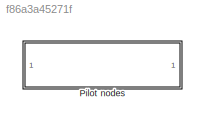
MODEL slx_f86a3a45271f
KIND model
CONFIG AbsTol = auto
CONFIG EnableMultiTasking = off
CONFIG FixedStep = auto
CONFIG MaxStep = auto
CONFIG MinStep = auto
CONFIG RelTol = 1e-3
CONFIG SampleTimeConstraint = Unconstrained
CONFIG SolverName = VariableStepAuto
CONFIG StartTime = 0.0
CONFIG StopTime = 10.0
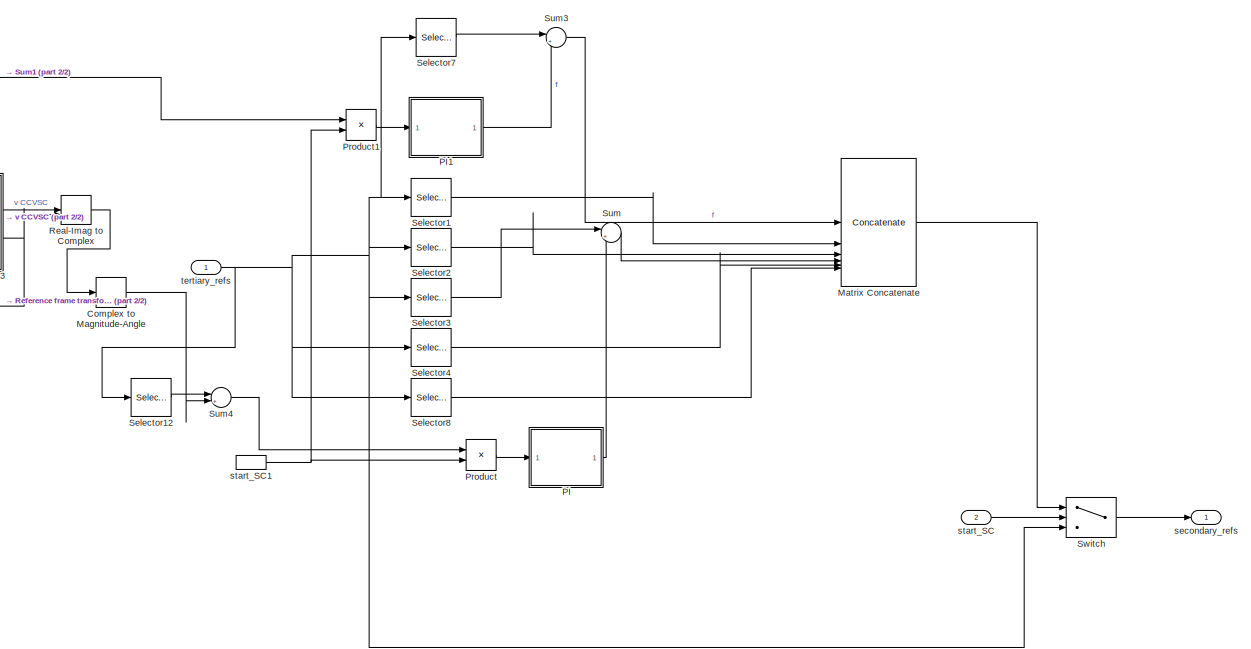
[diagram: Pilot nodes - part 1/2, right side, full height]
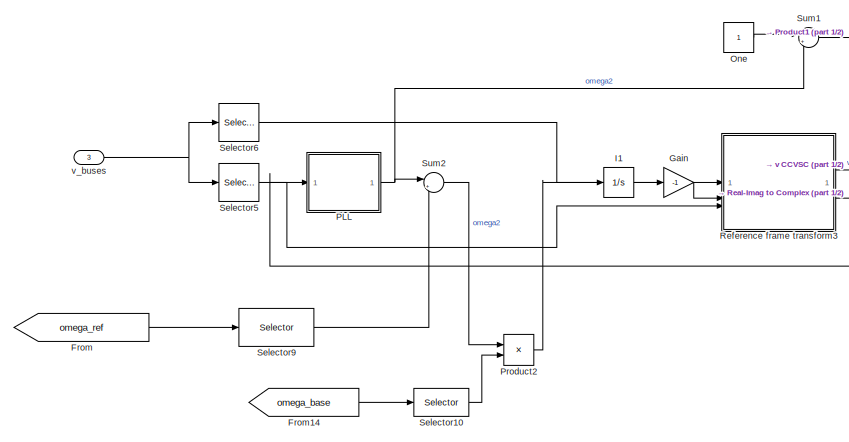
[diagram: Pilot nodes - part 2/2, middle left region]
BLOCK [SubSystem] Pilot nodes
  NameLocation = top
  VariantControl = Pilot nodes
BLOCK [ComplexToMagnitudeAngle] Pilot nodes/Complex to Magnitude-Angle
  Output = Magnitude
BLOCK [From] Pilot nodes/From
  GotoTag = omega_ref
  TagVisibility = scoped
BLOCK [From] Pilot nodes/From14
  GotoTag = omega_base
  TagVisibility = scoped
BLOCK [Gain] Pilot nodes/Gain
  Gain = -1
BLOCK [Integrator] Pilot nodes/I1
BLOCK [Concatenate] Pilot nodes/Matrix Concatenate
  Mode = Multidimensional array
  NumInputs = 6
BLOCK [Constant] Pilot nodes/One
  OutDataTypeStr = Inherit: Inherit via back propagation
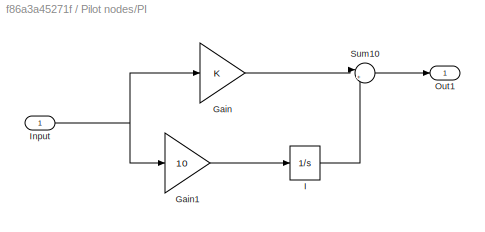
BLOCK [SubSystem] Pilot nodes/PI
BLOCK [Gain] Pilot nodes/PI/Gain
BLOCK [Gain] Pilot nodes/PI/Gain1
  Gain = 10
BLOCK [Integrator] Pilot nodes/PI/I
BLOCK [Inport] Pilot nodes/PI/Input
BLOCK [Outport] Pilot nodes/PI/Out1
BLOCK [Sum] Pilot nodes/PI/Sum10
  Inputs = |++
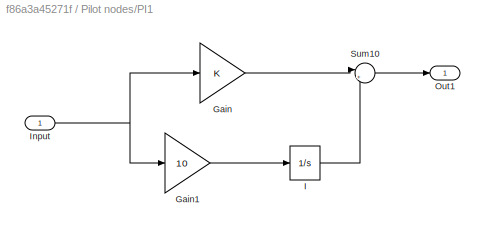
BLOCK [SubSystem] Pilot nodes/PI1
BLOCK [Gain] Pilot nodes/PI1/Gain
BLOCK [Gain] Pilot nodes/PI1/Gain1
  Gain = 10
BLOCK [Integrator] Pilot nodes/PI1/I
BLOCK [Inport] Pilot nodes/PI1/Input
BLOCK [Outport] Pilot nodes/PI1/Out1
BLOCK [Sum] Pilot nodes/PI1/Sum10
  Inputs = |++
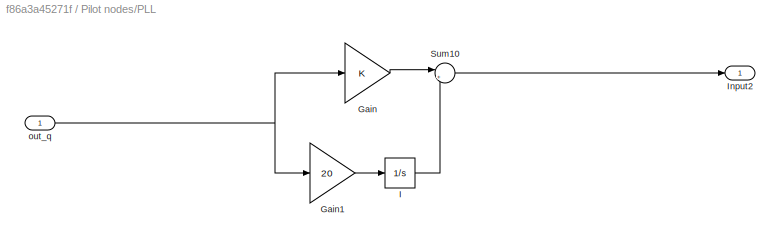
BLOCK [SubSystem] Pilot nodes/PLL
BLOCK [Gain] Pilot nodes/PLL/Gain
BLOCK [Gain] Pilot nodes/PLL/Gain1
  Gain = 20
BLOCK [Integrator] Pilot nodes/PLL/I
  InitialCondition = 1
BLOCK [Outport] Pilot nodes/PLL/Input2
BLOCK [Sum] Pilot nodes/PLL/Sum10
  Inputs = |++
BLOCK [Inport] Pilot nodes/PLL/out_q
BLOCK [Product] Pilot nodes/Product
BLOCK [Product] Pilot nodes/Product1
BLOCK [Product] Pilot nodes/Product2
BLOCK [RealImagToComplex] Pilot nodes/Real-Imag to Complex
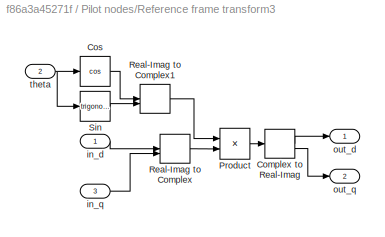
BLOCK [SubSystem] Pilot nodes/Reference frame transform3
BLOCK [ComplexToRealImag] Pilot nodes/Reference frame transform3/Complex to Real-Imag
BLOCK [Trigonometry] Pilot nodes/Reference frame transform3/Cos
  Operator = cos
  SCDEnableBlockLinearizationSpecification = on
BLOCK [Product] Pilot nodes/Reference frame transform3/Product
BLOCK [RealImagToComplex] Pilot nodes/Reference frame transform3/Real-Imag to Complex
BLOCK [RealImagToComplex] Pilot nodes/Reference frame transform3/Real-Imag to Complex1
BLOCK [Trigonometry] Pilot nodes/Reference frame transform3/Sin
  SCDEnableBlockLinearizationSpecification = on
BLOCK [Inport] Pilot nodes/Reference frame transform3/in_d
BLOCK [Inport] Pilot nodes/Reference frame transform3/in_q
  Port = 3
BLOCK [Outport] Pilot nodes/Reference frame transform3/out_d
BLOCK [Outport] Pilot nodes/Reference frame transform3/out_q
  Port = 2
BLOCK [Inport] Pilot nodes/Reference frame transform3/theta
  Port = 2
BLOCK [Selector] Pilot nodes/Selector1
  IndexOptions = Index vector (dialog),Select all
  Indices = 2,1
  InputPortWidth = 3
  NumberOfDimensions = 2
  OutputSizes = 1,1
BLOCK [Selector] Pilot nodes/Selector10
  IndexOptions = Index vector (dialog)
  Indices = fref.Fb_units
  InputPortWidth = length(fref.ref_units)
  OutputSizes = 1
BLOCK [Selector] Pilot nodes/Selector12
  IndexOptions = Index vector (dialog),Select all
  Indices = 3,1
  InputPortWidth = 3
  NumberOfDimensions = 2
  OutputSizes = 1,1
BLOCK [Selector] Pilot nodes/Selector2
  IndexOptions = Index vector (dialog),Select all
  Indices = 3,1
  InputPortWidth = 3
  NumberOfDimensions = 2
  OutputSizes = 1,1
BLOCK [Selector] Pilot nodes/Selector3
  IndexOptions = Index vector (dialog),Select all
  Indices = 4,1
  InputPortWidth = 3
  NumberOfDimensions = 2
  OutputSizes = 1,1
BLOCK [Selector] Pilot nodes/Selector4
  IndexOptions = Index vector (dialog),Select all
  Indices = 5,1
  InputPortWidth = 3
  NumberOfDimensions = 2
  OutputSizes = 1,1
BLOCK [Selector] Pilot nodes/Selector5
  IndexOptions = Index vector (dialog),Index vector (dialog)
  Indices = 2,buses_lf
  InputPortWidth = 3
  NumberOfDimensions = 2
  OutputSizes = 1,1
BLOCK [Selector] Pilot nodes/Selector6
  IndexOptions = Index vector (dialog),Index vector (dialog)
  Indices = 1,buses_lf
  InputPortWidth = 3
  NumberOfDimensions = 2
  OutputSizes = 1,1
BLOCK [Selector] Pilot nodes/Selector7
  IndexOptions = Index vector (dialog),Select all
  Indices = 1,1
  InputPortWidth = 3
  NumberOfDimensions = 2
  OutputSizes = 1,1
BLOCK [Selector] Pilot nodes/Selector8
  IndexOptions = Index vector (dialog),Select all
  Indices = 6,1
  InputPortWidth = 3
  NumberOfDimensions = 2
  OutputSizes = 1,1
BLOCK [Selector] Pilot nodes/Selector9
  IndexOptions = Index vector (dialog)
  Indices = fref.Fb_units
  InputPortWidth = length(fref.ref_units)
  NameLocation = top
  OutputSizes = 1
BLOCK [Sum] Pilot nodes/Sum
  Inputs = |++
BLOCK [Sum] Pilot nodes/Sum1
  Inputs = |+-
BLOCK [Sum] Pilot nodes/Sum2
  Inputs = |+-
BLOCK [Sum] Pilot nodes/Sum3
  Inputs = |++
BLOCK [Sum] Pilot nodes/Sum4
  Inputs = |+-
BLOCK [Switch] Pilot nodes/Switch
  Criteria = u2 > Threshold
  InputSameDT = off
  SaturateOnIntegerOverflow = off
BLOCK [Outport] Pilot nodes/secondary_refs
BLOCK [Inport] Pilot nodes/start_SC
  Port = 2
BLOCK [InportShadow] Pilot nodes/start_SC1
  Port = 2
BLOCK [Inport] Pilot nodes/tertiary_refs
BLOCK [Inport] Pilot nodes/v_buses
  Port = 3
LINE Pilot nodes/Complex to Magnitude-Angle:1 -> Pilot nodes/Sum4:2
LINE Pilot nodes/From14:1 -> Pilot nodes/Selector10:1
LINE Pilot nodes/From:1 -> Pilot nodes/Selector9:1
LINE Pilot nodes/Gain:1 -> Pilot nodes/Reference frame transform3:2
LINE Pilot nodes/I1:1 -> Pilot nodes/Gain:1
LINE Pilot nodes/Matrix Concatenate:1 -> Pilot nodes/Switch:1
LINE Pilot nodes/One:1 -> Pilot nodes/Sum1:1
LINE Pilot nodes/PI/Gain1:1 -> Pilot nodes/PI/I:1
LINE Pilot nodes/PI/Gain:1 -> Pilot nodes/PI/Sum10:1
LINE Pilot nodes/PI/I:1 -> Pilot nodes/PI/Sum10:2
NET Pilot nodes/PI/Input:1 -> Pilot nodes/PI/Gain1:1, Pilot nodes/PI/Gain:1
LINE Pilot nodes/PI/Sum10:1 -> Pilot nodes/PI/Out1:1
LINE Pilot nodes/PI1/Gain1:1 -> Pilot nodes/PI1/I:1
LINE Pilot nodes/PI1/Gain:1 -> Pilot nodes/PI1/Sum10:1
LINE Pilot nodes/PI1/I:1 -> Pilot nodes/PI1/Sum10:2
NET Pilot nodes/PI1/Input:1 -> Pilot nodes/PI1/Gain1:1, Pilot nodes/PI1/Gain:1
LINE Pilot nodes/PI1/Sum10:1 -> Pilot nodes/PI1/Out1:1
LINE Pilot nodes/PI1:1 -> Pilot nodes/Sum3:2
LINE Pilot nodes/PI:1 -> Pilot nodes/Sum:2
LINE Pilot nodes/PLL/Gain1:1 -> Pilot nodes/PLL/I:1
LINE Pilot nodes/PLL/Gain:1 -> Pilot nodes/PLL/Sum10:1
LINE Pilot nodes/PLL/I:1 -> Pilot nodes/PLL/Sum10:2
LINE Pilot nodes/PLL/Sum10:1 -> Pilot nodes/PLL/Input2:1
NET Pilot nodes/PLL/out_q:1 -> Pilot nodes/PLL/Gain1:1, Pilot nodes/PLL/Gain:1
NET Pilot nodes/PLL:1 -> Pilot nodes/Sum1:2, Pilot nodes/Sum2:1
LINE Pilot nodes/Product1:1 -> Pilot nodes/PI1:1
LINE Pilot nodes/Product2:1 -> Pilot nodes/I1:1
LINE Pilot nodes/Product:1 -> Pilot nodes/PI:1
LINE Pilot nodes/Real-Imag to Complex:1 -> Pilot nodes/Complex to Magnitude-Angle:1
LINE Pilot nodes/Reference frame transform3/Complex to Real-Imag:1 -> Pilot nodes/Reference frame transform3/out_d:1
LINE Pilot nodes/Reference frame transform3/Complex to Real-Imag:2 -> Pilot nodes/Reference frame transform3/out_q:1
LINE Pilot nodes/Reference frame transform3/Cos:1 -> Pilot nodes/Reference frame transform3/Real-Imag to Complex1:1
LINE Pilot nodes/Reference frame transform3/Product:1 -> Pilot nodes/Reference frame transform3/Complex to Real-Imag:1
LINE Pilot nodes/Reference frame transform3/Real-Imag to Complex1:1 -> Pilot nodes/Reference frame transform3/Product:1
LINE Pilot nodes/Reference frame transform3/Real-Imag to Complex:1 -> Pilot nodes/Reference frame transform3/Product:2
LINE Pilot nodes/Reference frame transform3/Sin:1 -> Pilot nodes/Reference frame transform3/Real-Imag to Complex1:2
LINE Pilot nodes/Reference frame transform3/in_d:1 -> Pilot nodes/Reference frame transform3/Real-Imag to Complex:1
LINE Pilot nodes/Reference frame transform3/in_q:1 -> Pilot nodes/Reference frame transform3/Real-Imag to Complex:2
NET Pilot nodes/Reference frame transform3/theta:1 -> Pilot nodes/Reference frame transform3/Cos:1, Pilot nodes/Reference frame transform3/Sin:1
LINE Pilot nodes/Reference frame transform3:1 -> Pilot nodes/Real-Imag to Complex:1
NET Pilot nodes/Reference frame transform3:2 -> Pilot nodes/PLL:1, Pilot nodes/Real-Imag to Complex:2
LINE Pilot nodes/Selector10:1 -> Pilot nodes/Product2:2
LINE Pilot nodes/Selector12:1 -> Pilot nodes/Sum4:1
LINE Pilot nodes/Selector1:1 -> Pilot nodes/Matrix Concatenate:2
LINE Pilot nodes/Selector2:1 -> Pilot nodes/Matrix Concatenate:3
LINE Pilot nodes/Selector3:1 -> Pilot nodes/Sum:1
LINE Pilot nodes/Selector4:1 -> Pilot nodes/Matrix Concatenate:5
LINE Pilot nodes/Selector5:1 -> Pilot nodes/Reference frame transform3:3
LINE Pilot nodes/Selector6:1 -> Pilot nodes/Reference frame transform3:1
LINE Pilot nodes/Selector7:1 -> Pilot nodes/Sum3:1
LINE Pilot nodes/Selector8:1 -> Pilot nodes/Matrix Concatenate:6
LINE Pilot nodes/Selector9:1 -> Pilot nodes/Sum2:2
LINE Pilot nodes/Sum1:1 -> Pilot nodes/Product1:1
LINE Pilot nodes/Sum2:1 -> Pilot nodes/Product2:1
LINE Pilot nodes/Sum3:1 -> Pilot nodes/Matrix Concatenate:1
LINE Pilot nodes/Sum4:1 -> Pilot nodes/Product:1
LINE Pilot nodes/Sum:1 -> Pilot nodes/Matrix Concatenate:4
LINE Pilot nodes/Switch:1 -> Pilot nodes/secondary_refs:1
NET Pilot nodes/start_SC1:1 -> Pilot nodes/Product1:2, Pilot nodes/Product:2
LINE Pilot nodes/start_SC:1 -> Pilot nodes/Switch:2
NET Pilot nodes/tertiary_refs:1 -> Pilot nodes/Selector12:1, Pilot nodes/Selector1:1, Pilot nodes/Selector2:1, Pilot nodes/Selector3:1, Pilot nodes/Selector4:1, Pilot nodes/Selector7:1, Pilot nodes/Selector8:1, Pilot nodes/Switch:3
NET Pilot nodes/v_buses:1 -> Pilot nodes/Selector5:1, Pilot nodes/Selector6:1
note: NET lines group one-source signal fan-out (src -> all destinations, sorted); 1:1 wires keep LINE
